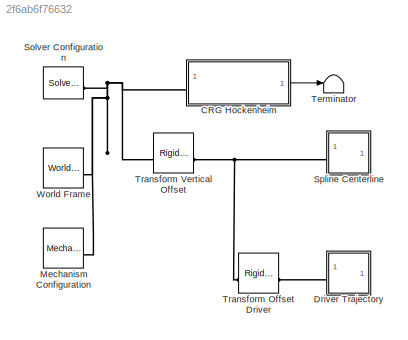
MODEL slx_2f6ab6f76632
KIND model
CONFIG AbsTol = auto
CONFIG EnableMultiTasking = on
CONFIG FixedStep = auto
CONFIG MaxStep = auto
CONFIG MinStep = auto
CONFIG PreLoadFcn = sm_car_scene_stl_create(Scene.CRG_Hockenheim)
CONFIG RelTol = 1e-3
CONFIG SampleTimeConstraint = Unconstrained
CONFIG SolverName = VariableStepAuto
CONFIG StartTime = 0.0
CONFIG StopTime = 10.0
WORKSPACE source: MATLAB code (in-file)
WORKSPACE code: load CRG_Custom_dat
WORKSPACE code: load CRG_Custom_trajectory_default
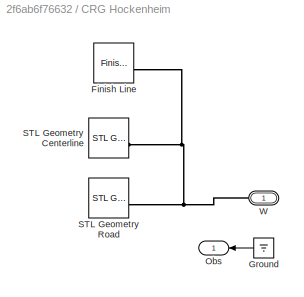
BLOCK [SubSystem] CRG Hockenheim
  AncestorBlock = sm_car_scene_crg_hockenheim/CRG Hockenheim
BLOCK [Reference] CRG Hockenheim/Finish Line  REF=Scene_Utilities/Finish Line
  SourceBlock = Scene_Utilities/Finish Line
BLOCK [Ground] CRG Hockenheim/Ground
  NameLocation = top
BLOCK [Outport] CRG Hockenheim/Obs
  VectorParamsAs1DForOutWhenUnconnected = off
BLOCK [Reference] CRG Hockenheim/STL Geometry Centerline  REF=Scene_Utilities/STL Geometry
  SourceBlock = Scene_Utilities/STL Geometry
BLOCK [Reference] CRG Hockenheim/STL Geometry Road  REF=Scene_Utilities/STL Geometry
  SourceBlock = Scene_Utilities/STL Geometry
BLOCK [PMIOPort] CRG Hockenheim/W
  NameLocation = top
  Side = Left
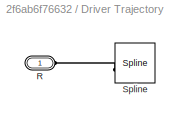
BLOCK [SubSystem] Driver Trajectory
BLOCK [PMIOPort] Driver Trajectory/R
  Side = Left
BLOCK [Reference] Driver Trajectory/Spline  REF=sm_lib/Curves and Surfaces/Spline
  SourceBlock = sm_lib/Curves and Surfaces/Spline
  SourceType = Spline
BLOCK [Reference] Mechanism Configuration  REF=sm_lib/Utilities/Mechanism
Configuration
  SourceBlock = sm_lib/Utilities/Mechanism\nConfiguration
  SourceType = Mechanism\nConfiguration
BLOCK [Reference] Solver Configuration  REF=nesl_utility/Solver
Configuration
  SourceBlock = nesl_utility/Solver\nConfiguration
  SourceType = Solver\nConfiguration
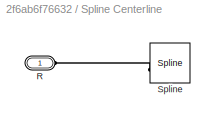
BLOCK [SubSystem] Spline Centerline
BLOCK [PMIOPort] Spline Centerline/R
  Side = Left
BLOCK [Reference] Spline Centerline/Spline  REF=sm_lib/Curves and Surfaces/Spline
  SourceBlock = sm_lib/Curves and Surfaces/Spline
  SourceType = Spline
BLOCK [Terminator] Terminator
BLOCK [Reference] Transform Offset Driver  REF=sm_lib/Frames and
Transforms/Rigid
Transform
  SourceBlock = sm_lib/Frames and\nTransforms/Rigid\nTransform
  SourceType = Rigid\nTransform
BLOCK [Reference] Transform Vertical Offset  REF=sm_lib/Frames and
Transforms/Rigid
Transform
  SourceBlock = sm_lib/Frames and\nTransforms/Rigid\nTransform
  SourceType = Rigid\nTransform
BLOCK [Reference] World Frame  REF=sm_lib/Frames and
Transforms/World Frame
  SourceBlock = sm_lib/Frames and\nTransforms/World Frame
  SourceType = World Frame
LINE CRG Hockenheim:1 -> Terminator:1
PNET net1: CRG Hockenheim:LConn1 -- Mechanism Configuration:RConn1 -- Solver Configuration:RConn1 -- Transform Vertical Offset:LConn1 -- World Frame:RConn1
PLINE Driver Trajectory/R:RConn1 -- Driver Trajectory/Spline:LConn1
PLINE Driver Trajectory:LConn1 -- Transform Offset Driver:RConn1
PLINE Spline Centerline/R:RConn1 -- Spline Centerline/Spline:LConn1
PNET net2: Spline Centerline:LConn1 -- Transform Offset Driver:LConn1 -- Transform Vertical Offset:RConn1
note: PNET lines group multi-terminal physical nets as a canonical sorted terminal list (undirected conserving connections); 2-terminal nets keep the pairwise PLINE form
